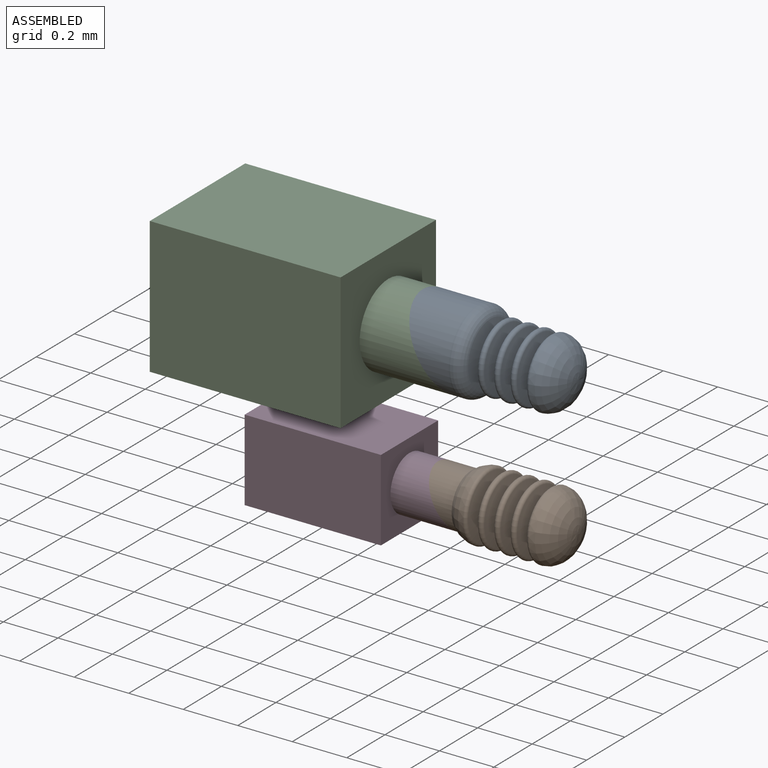
[diagram: assembled view]
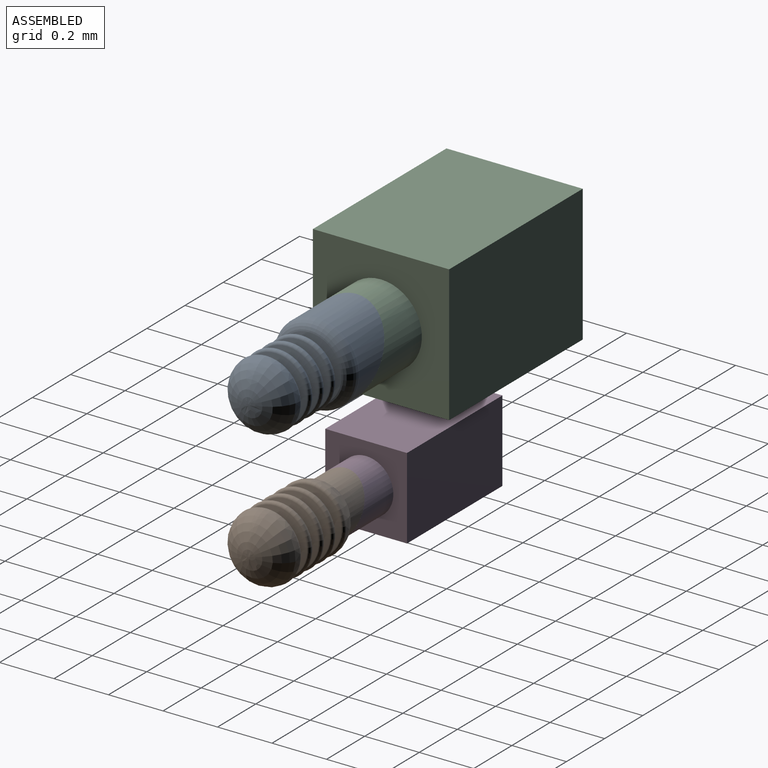
[diagram: assembled view, second angle]
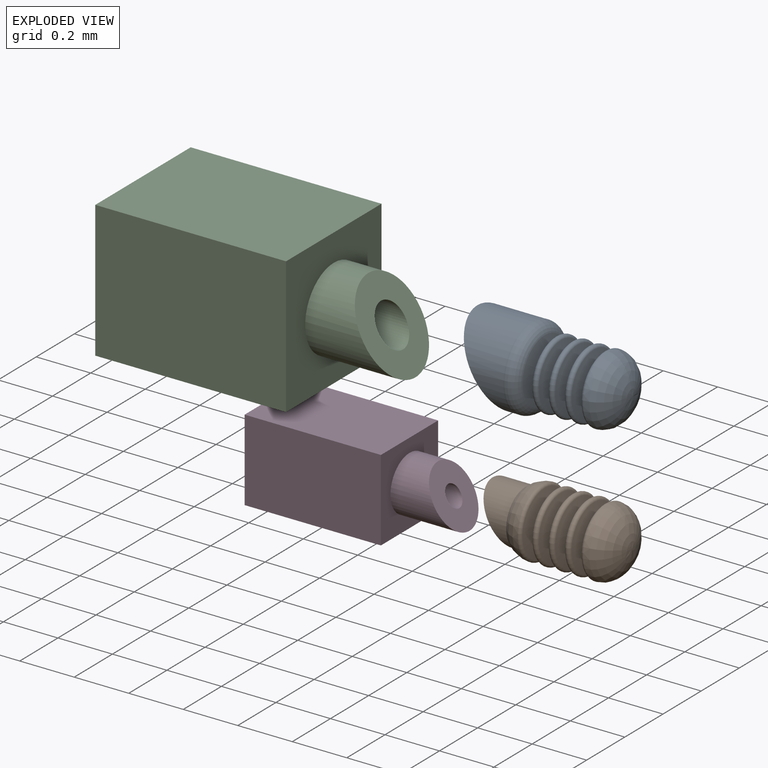
[diagram: exploded view]
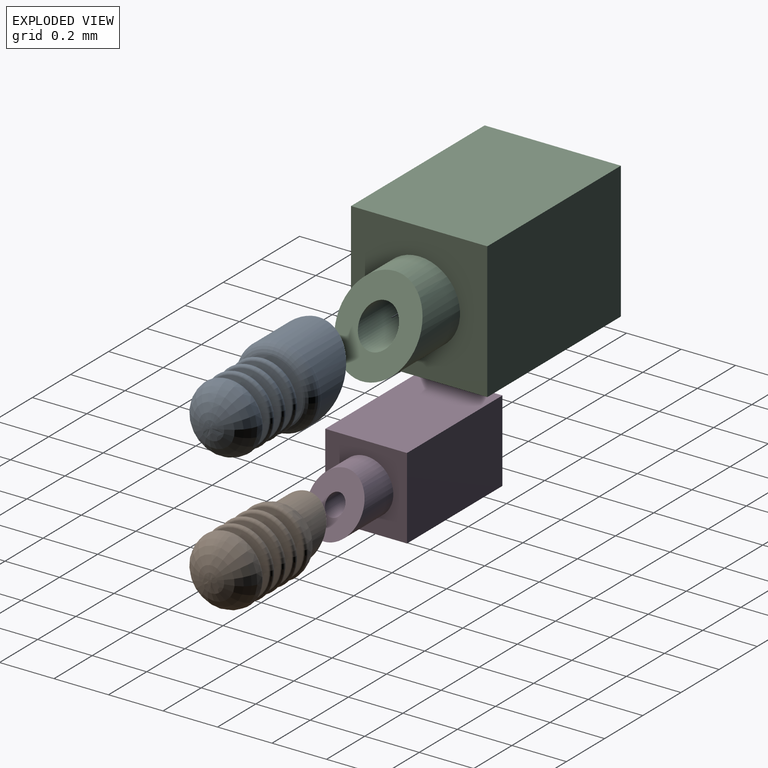
[diagram: exploded view, second angle]
ASSEMBLY  parts=4 mates=2
PART A: 41 faces, bbox 0.6x0.3x0.3 mm
  f0: torus R=0.12mm, axis (-1,0,0), area 0mm2, adj f1,f19
  f1: cone r=0.12mm half-angle=81.4deg, axis (1,0,0), area 0mm2, adj f0,f2
  f2: torus R=0.05mm, axis (-1,0,0), area 0mm2, adj f1,f3
  f3: cone r=0.12mm half-angle=81.4deg, axis (-1,0,0), area 0mm2, adj f2,f4
  f4: torus R=0.12mm, axis (-1,0,0), area 0mm2, adj f3,f5
  f5: cone r=0.12mm half-angle=81.4deg, axis (1,0,0), area 0mm2, adj f4,f6
  f6: torus R=0.05mm, axis (-1,0,0), area 0mm2, adj f5,f7
  f7: cone r=0.12mm half-angle=81.4deg, axis (-1,0,0), area 0mm2, adj f6,f8
  f8: torus R=0.12mm, axis (-1,0,0), area 0mm2, adj f7,f9
  f9: cone r=0.12mm half-angle=81.4deg, axis (1,0,0), area 0mm2, adj f8,f10
  f10: torus R=0.05mm, axis (-1,0,0), area 0mm2, adj f9,f11
  f11: cone r=0.12mm half-angle=81.4deg, axis (-1,0,0), area 0mm2, adj f10,f12
  f12: torus R=0.12mm, axis (-1,0,0), area 0mm2, adj f11,f13
  f13: torus R=0.11mm, axis (-1,0,0), area 0.1mm2, adj f12,f14
  f14: cylinder r=0.15mm len=0.3mm, axis (-1,0,0), area 0.1mm2, adj f13,f20
  f15: revolved ~0.25x0.25mm, area 0.1mm2, adj f16
  f16: torus R=0.12mm, axis (-1,0,0), area 0mm2, adj f15,f17
  f17: cone r=0.12mm half-angle=81.4deg, axis (1,0,0), area 0mm2, adj f16,f18
  f18: torus R=0.05mm, axis (-1,0,0), area 0mm2, adj f17,f19
  f19: cone r=0.12mm half-angle=81.4deg, axis (-1,0,0), area 0mm2, adj f0,f18
  f20: plane 0.32x0.32mm, normal (-0.87,-0.5,0), area 0.1mm2, adj f14,f40
  f21: revolved ~0.25x0.25mm, area 0.1mm2, adj f22
  f22: torus R=0.12mm, axis (-1,0,0), area 0mm2, adj f21,f23
  f23: cone r=0.12mm half-angle=81.4deg, axis (1,0,0), area 0mm2, adj f22,f24
  f24: torus R=0.05mm, axis (-1,0,0), area 0mm2, adj f23,f25
  f25: cone r=0.12mm half-angle=81.4deg, axis (-1,0,0), area 0mm2, adj f24,f26
  f26: torus R=0.12mm, axis (-1,0,0), area 0mm2, adj f25,f27
  f27: cone r=0.12mm half-angle=81.4deg, axis (1,0,0), area 0mm2, adj f26,f28
  f28: torus R=0.05mm, axis (-1,0,0), area 0mm2, adj f27,f29
  f29: cone r=0.12mm half-angle=81.4deg, axis (-1,0,0), area 0mm2, adj f28,f30
  f30: torus R=0.12mm, axis (-1,0,0), area 0mm2, adj f29,f31
  f31: cone r=0.12mm half-angle=81.4deg, axis (1,0,0), area 0mm2, adj f30,f32
  f32: torus R=0.05mm, axis (-1,0,0), area 0mm2, adj f31,f33
  f33: cone r=0.12mm half-angle=81.4deg, axis (-1,0,0), area 0mm2, adj f32,f34
  f34: torus R=0.12mm, axis (-1,0,0), area 0mm2, adj f33,f35
  f35: cone r=0.12mm half-angle=81.4deg, axis (1,0,0), area 0mm2, adj f34,f36
  f36: torus R=0.05mm, axis (-1,0,0), area 0mm2, adj f35,f37
  f37: cone r=0.12mm half-angle=81.4deg, axis (-1,0,0), area 0mm2, adj f36,f38
  f38: torus R=0.12mm, axis (-1,0,0), area 0mm2, adj f37,f39
  f39: revolved ~0.25x0.25mm, area 0mm2, adj f38,f40
  f40: cylinder r=0.07mm len=0.17mm, axis (-1,0,0), area 0.1mm2, adj f20,f39
PART B: 41 faces, bbox 0.5x0.3x0.3 mm
  f0: torus R=0.12mm, axis (-1,0,0), area 0mm2, adj f1,f19
  f1: cone r=0.12mm half-angle=81.4deg, axis (1,0,0), area 0mm2, adj f0,f2
  f2: torus R=0.05mm, axis (-1,0,0), area 0mm2, adj f1,f3
  f3: cone r=0.12mm half-angle=81.4deg, axis (-1,0,0), area 0mm2, adj f2,f4
  f4: torus R=0.12mm, axis (-1,0,0), area 0mm2, adj f3,f5
  f5: cone r=0.12mm half-angle=81.4deg, axis (1,0,0), area 0mm2, adj f4,f6
  f6: torus R=0.05mm, axis (-1,0,0), area 0mm2, adj f5,f7
  f7: cone r=0.12mm half-angle=81.4deg, axis (-1,0,0), area 0mm2, adj f6,f8
  f8: torus R=0.12mm, axis (-1,0,0), area 0mm2, adj f7,f9
  f9: cone r=0.12mm half-angle=81.4deg, axis (1,0,0), area 0mm2, adj f8,f10
  f10: torus R=0.05mm, axis (-1,0,0), area 0mm2, adj f9,f11
  f11: cone r=0.12mm half-angle=81.4deg, axis (-1,0,0), area 0mm2, adj f10,f12
  f12: torus R=0.12mm, axis (-1,0,0), area 0mm2, adj f11,f13
  f13: revolved ~0.25x0.25mm, area 0mm2, adj f12,f14
  f14: cylinder r=0.1mm len=0.2mm, axis (-1,0,0), area 0mm2, adj f13,f20
  f15: revolved ~0.25x0.25mm, area 0.1mm2, adj f16
  f16: torus R=0.12mm, axis (-1,0,0), area 0mm2, adj f15,f17
  f17: cone r=0.12mm half-angle=81.4deg, axis (1,0,0), area 0mm2, adj f16,f18
  f18: torus R=0.05mm, axis (-1,0,0), area 0mm2, adj f17,f19
  f19: cone r=0.12mm half-angle=81.4deg, axis (-1,0,0), area 0mm2, adj f0,f18
  f20: plane 0.21x0.21mm, normal (-0.87,-0.5,0), area 0mm2, adj f14,f40
  f21: revolved ~0.25x0.25mm, area 0.1mm2, adj f22
  f22: torus R=0.12mm, axis (-1,0,0), area 0mm2, adj f21,f23
  f23: cone r=0.12mm half-angle=81.4deg, axis (1,0,0), area 0mm2, adj f22,f24
  f24: torus R=0.05mm, axis (-1,0,0), area 0mm2, adj f23,f25
  f25: cone r=0.12mm half-angle=81.4deg, axis (-1,0,0), area 0mm2, adj f24,f26
  f26: torus R=0.12mm, axis (-1,0,0), area 0mm2, adj f25,f27
  f27: cone r=0.12mm half-angle=81.4deg, axis (1,0,0), area 0mm2, adj f26,f28
  f28: torus R=0.05mm, axis (-1,0,0), area 0mm2, adj f27,f29
  f29: cone r=0.12mm half-angle=81.4deg, axis (-1,0,0), area 0mm2, adj f28,f30
  f30: torus R=0.12mm, axis (-1,0,0), area 0mm2, adj f29,f31
  f31: cone r=0.12mm half-angle=81.4deg, axis (1,0,0), area 0mm2, adj f30,f32
  f32: torus R=0.05mm, axis (-1,0,0), area 0mm2, adj f31,f33
  f33: cone r=0.12mm half-angle=81.4deg, axis (-1,0,0), area 0mm2, adj f32,f34
  f34: torus R=0.12mm, axis (-1,0,0), area 0mm2, adj f33,f35
  f35: cone r=0.12mm half-angle=81.4deg, axis (1,0,0), area 0mm2, adj f34,f36
  f36: torus R=0.05mm, axis (-1,0,0), area 0mm2, adj f35,f37
  f37: cone r=0.12mm half-angle=81.4deg, axis (-1,0,0), area 0mm2, adj f36,f38
  f38: torus R=0.12mm, axis (-1,0,0), area 0mm2, adj f37,f39
  f39: revolved ~0.25x0.25mm, area 0mm2, adj f38,f40
  f40: cylinder r=0.03mm len=0.12mm, axis (-1,0,0), area 0mm2, adj f20,f39
PART C: 11 faces, bbox 1x0.5x0.5 mm
  f0: cylinder r=0.15mm len=0.3mm, axis (-1,0,0), area 0.2mm2, adj f6,f7
  f1: plane 0.7x0.5mm, normal (0,1,0), area 0.3mm2, adj f2,f4,f5,f6
  f2: plane 0.7x0.5mm, normal (0,0,1), area 0.3mm2, adj f1,f3,f5,f6
  f3: plane 0.7x0.5mm, normal (0,-1,0), area 0.3mm2, adj f2,f4,f5,f6
  f4: plane 0.7x0.5mm, normal (0,0,-1), area 0.3mm2, adj f1,f3,f5,f6
  f5: plane 0.5x0.5mm, normal (-1,0,0), area 0.1mm2, adj f1,f2,f3,f4,f8
  f6: plane 0.5x0.5mm, normal (1,0,0), area 0.2mm2, adj f0,f1,f2,f3,f4
  f7: plane 0.3x0.3mm, normal (0.87,0,0.5), area 0.1mm2, adj f0,f10
  f8: cylinder r=0.19mm len=0.65mm, axis (-1,0,0), area 0.8mm2, adj f5,f9
  f9: plane 0.38x0.38mm, normal (-1,0,0), area 0.1mm2, adj f8,f10
  f10: cylinder r=0.07mm len=0.3mm, axis (-1,0,0), area 0.1mm2, adj f7,f9
PART D: 11 faces, bbox 0.7x0.3x0.3 mm
  f0: cylinder r=0.1mm len=0.22mm, axis (-1,0,0), area 0.1mm2, adj f6,f7
  f1: plane 0.5x0.3mm, normal (0,1,0), area 0.1mm2, adj f2,f4,f5,f6
  f2: plane 0.5x0.3mm, normal (0,0,1), area 0.1mm2, adj f1,f3,f5,f6
  f3: plane 0.5x0.3mm, normal (0,-1,0), area 0.1mm2, adj f2,f4,f5,f6
  f4: plane 0.5x0.3mm, normal (0,0,-1), area 0.1mm2, adj f1,f3,f5,f6
  f5: plane 0.3x0.3mm, normal (-1,0,0), area 0.1mm2, adj f1,f2,f3,f4,f8
  f6: plane 0.3x0.3mm, normal (1,0,0), area 0.1mm2, adj f0,f1,f2,f3,f4
  f7: plane 0.2x0.2mm, normal (0.87,0,0.5), area 0mm2, adj f0,f10
  f8: cylinder r=0.11mm len=0.45mm, axis (-1,0,0), area 0.3mm2, adj f5,f9
  f9: plane 0.22x0.22mm, normal (-1,0,0), area 0mm2, adj f8,f10
  f10: cylinder r=0.03mm len=0.23mm, axis (-1,0,0), area 0mm2, adj f7,f9
PLACE A rot(axis=(1,0,0),90deg) t=(0.58,0,0.51)mm
PLACE B rot(axis=(1,0,0),90deg) t=(0.58,0,0)mm
PLACE C t=(-0.03,0,0.51)mm fixed
PLACE D t=(0.05,0,0)mm fixed
MATE fastened C.f7 <-> A.f20  axis (0.87,0,0.5) through (0.19,0,0.51)mm
MATE fastened B.f20 <-> D.f7  axis (-0.87,0,-0.5) through (0.21,0,0)mm
